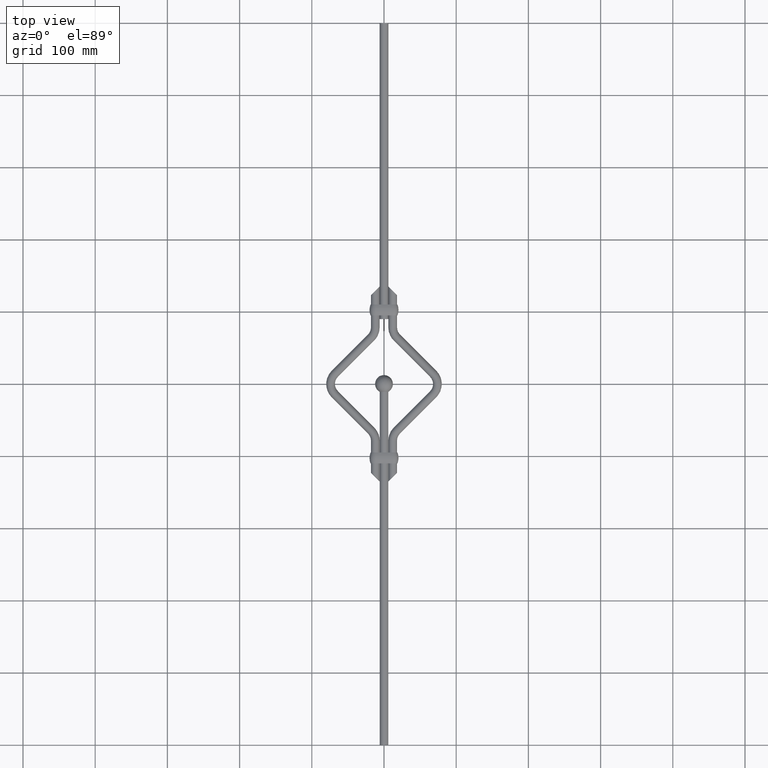
[diagram: clean part render]
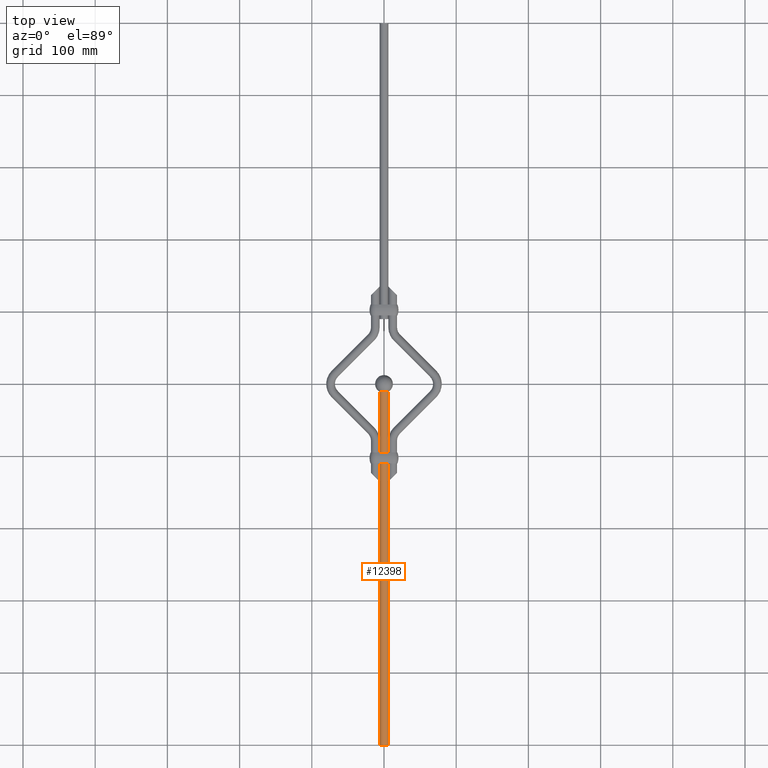
[diagram: same view with one face highlighted and labeled with its STEP entity id]
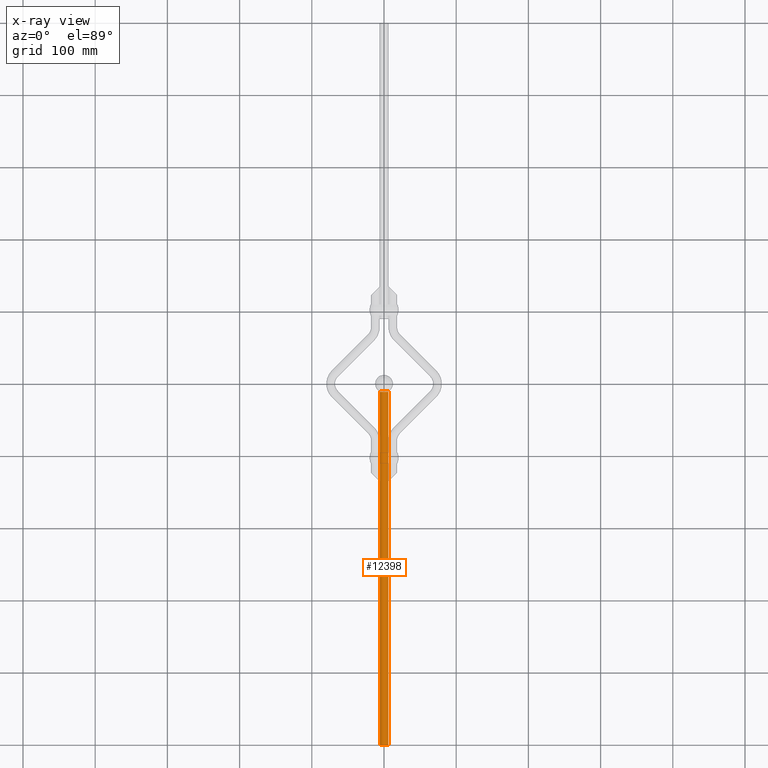
[diagram: x-ray of the same camera — body ghosted, the highlighted face saturated]
A machine part, top view. The second image highlights one B-rep face of the part: STEP entity #12398.
The next image is the same camera in x-ray: the body ghosted, the highlighted face saturated — about 0% of this face is hidden behind the body in this view.
In plain terms, the highlighted cylindrical surface (bore or boss wall) has radius 6 mm, axis along (-0, -1, -0).
Its self-contained STEP definition (entity closure, byte-faithful):
#545 = FACE_OUTER_BOUND ( 'NONE', #720, .T. ) ;
#720 = EDGE_LOOP ( 'NONE', ( #6597 ) ) ;
#1100 = AXIS2_PLACEMENT_3D ( 'NONE', #1106, #1151, #12074 ) ;
#1106 = CARTESIAN_POINT ( 'NONE',  ( 0.000000000000000000, 0.000000000000000000, 0.000000000000000000 ) ) ;
#1151 = DIRECTION ( 'NONE',  ( -0.000000000000000000, -1.000000000000000000, -0.000000000000000000 ) ) ;
#1846 = CARTESIAN_POINT ( 'NONE',  ( 0.000000000000000000, 489.0341439002693278, -5.999999999999975131 ) ) ;
#2614 = DIRECTION ( 'NONE',  ( -0.000000000000000000, -1.000000000000000000, -0.000000000000000000 ) ) ;
#3678 = VERTEX_POINT ( 'NONE', #1846 ) ;
#4685 = FACE_OUTER_BOUND ( 'NONE', #5274, .T. ) ;
#5199 = EDGE_CURVE ( 'NONE', #9570, #9570, #14157, .T. ) ;
#5274 = EDGE_LOOP ( 'NONE', ( #10577 ) ) ;
#6280 = DIRECTION ( 'NONE',  ( -0.000000000000000000, -1.000000000000000000, -0.000000000000000000 ) ) ;
#6589 = CIRCLE ( 'NONE', #12300, 5.999999999999975131 ) ;
#6597 = ORIENTED_EDGE ( 'NONE', *, *, #5199, .F. ) ;
#9570 = VERTEX_POINT ( 'NONE', #9670 ) ;
#9670 = CARTESIAN_POINT ( 'NONE',  ( 0.000000000000000000, 0.000000000000000000, -6.000000000000000000 ) ) ;
#10577 = ORIENTED_EDGE ( 'NONE', *, *, #11352, .T. ) ;
#11352 = EDGE_CURVE ( 'NONE', #3678, #3678, #6589, .T. ) ;
#11424 = CYLINDRICAL_SURFACE ( 'NONE', #1100, 5.999999999999987566 ) ;
#11905 = AXIS2_PLACEMENT_3D ( 'NONE', #12421, #2614, #13575 ) ;
#12074 = DIRECTION ( 'NONE',  ( 0.000000000000000000, 0.000000000000000000, -1.000000000000000000 ) ) ;
#12300 = AXIS2_PLACEMENT_3D ( 'NONE', #14050, #6280, #13955 ) ;
#12398 = ADVANCED_FACE ( 'NONE', ( #4685, #545 ), #11424, .T. ) ;
#12421 = CARTESIAN_POINT ( 'NONE',  ( 0.000000000000000000, 0.000000000000000000, 0.000000000000000000 ) ) ;
#13575 = DIRECTION ( 'NONE',  ( 0.000000000000000000, 0.000000000000000000, -1.000000000000000000 ) ) ;
#13955 = DIRECTION ( 'NONE',  ( 0.000000000000000000, 0.000000000000000000, -1.000000000000000000 ) ) ;
#14050 = CARTESIAN_POINT ( 'NONE',  ( 0.000000000000000000, 489.0341439002693278, 0.000000000000000000 ) ) ;
#14157 = CIRCLE ( 'NONE', #11905, 6.000000000000000000 ) ;